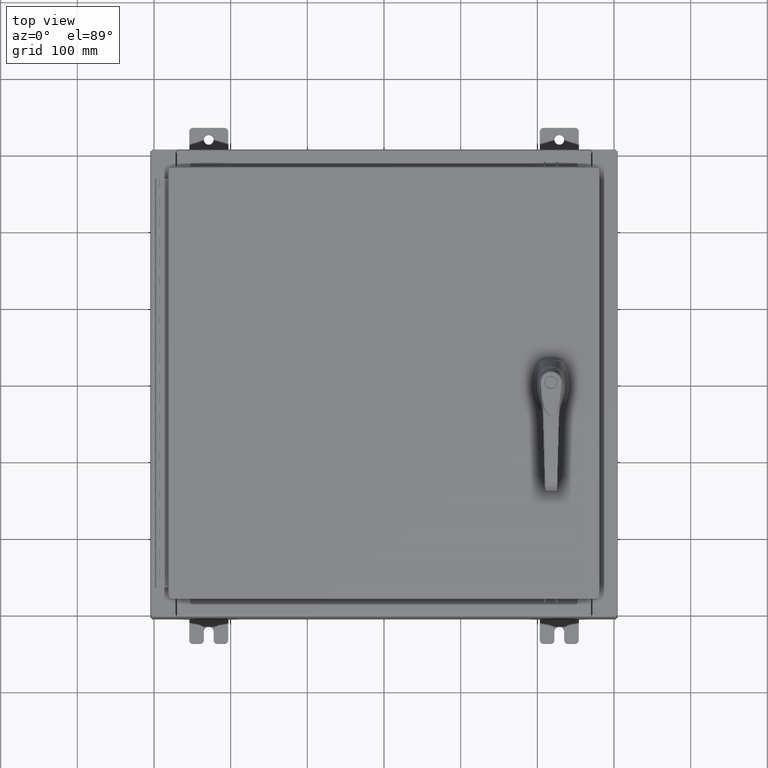
[diagram: clean part render]
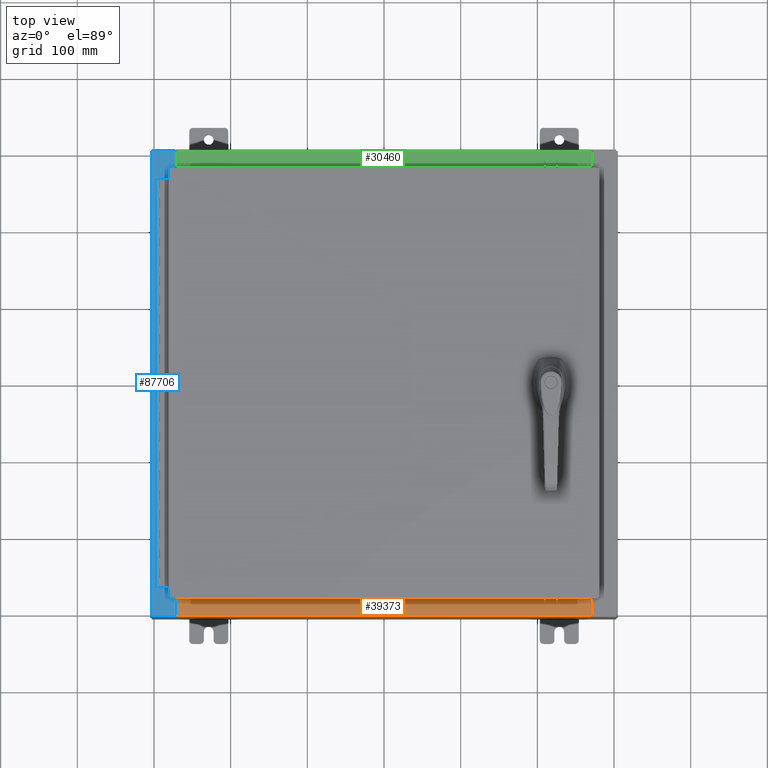
[diagram: same view with three faces highlighted in distinct colors, each labeled with its STEP entity id]
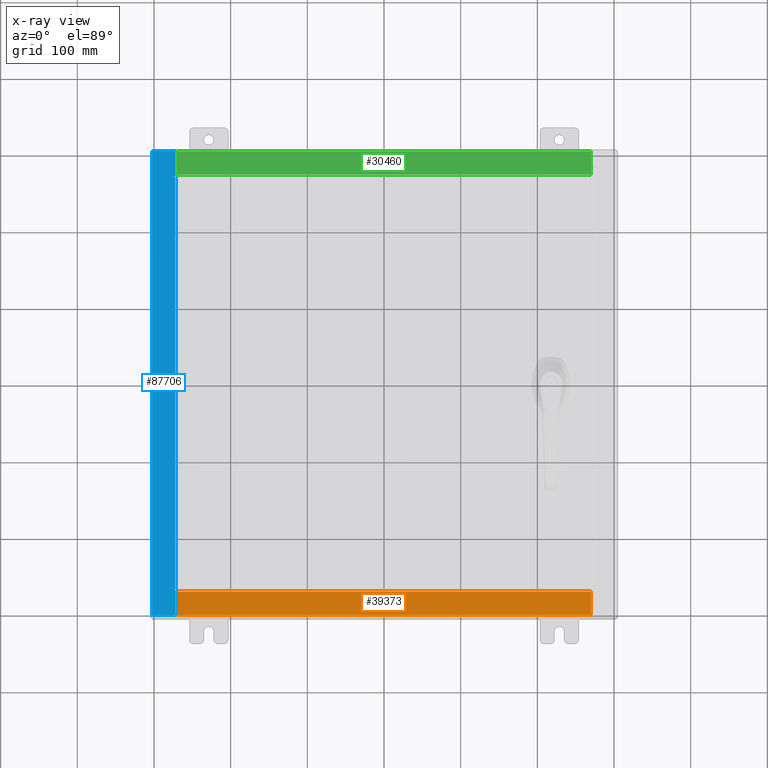
[diagram: x-ray of the same camera — body ghosted, the three highlighted faces saturated]
A machine part, top view with three faces highlighted in distinct colors.
The next image is the same camera in x-ray (body ghosted, the three faces saturated) — at least one of them is partly hidden behind the body in this view.
Their STEP definitions:

[orange] entity #39373 — the highlighted planar face has unit normal (-0, -0, 1).
#1429 = EDGE_CURVE ( 'NONE', #53673, #110634, #16888, .T. ) ;
#1883 = CARTESIAN_POINT ( 'NONE',  ( 0.0000000000000000000, 1.425992975200418500E-014, 4.000000000000000000 ) ) ;
#3041 = CARTESIAN_POINT ( 'NONE',  ( 10.63720000000000400, -1.287299999999999900, 4.000000000000003600 ) ) ;
#3532 = DIRECTION ( 'NONE',  ( -0.0000000000000000000, -1.000000000000000000, 3.566381192773190000E-015 ) ) ;
#3875 = EDGE_CURVE ( 'NONE', #22768, #53673, #96547, .T. ) ;
#12173 = EDGE_CURVE ( 'NONE', #54804, #110634, #84889, .T. ) ;
#15440 = DIRECTION ( 'NONE',  ( -0.0000000000000000000, 1.000000000000000000, -3.566381192773190000E-015 ) ) ;
#16888 = LINE ( 'NONE', #32436, #103581 ) ;
#19287 = DIRECTION ( 'NONE',  ( 0.0000000000000000000, -1.000000000000000000, 3.566381192773190000E-015 ) ) ;
#22768 = VERTEX_POINT ( 'NONE', #26727 ) ;
#24507 = CARTESIAN_POINT ( 'NONE',  ( 10.63720000000000400, -0.08769999999999965300, 4.000000000000000000 ) ) ;
#26727 = CARTESIAN_POINT ( 'NONE',  ( 10.63720000000000200, -1.287299999999999900, 4.000000000000004400 ) ) ;
#30814 = FACE_OUTER_BOUND ( 'NONE', #86285, .T. ) ;
#32436 = CARTESIAN_POINT ( 'NONE',  ( -10.63720000000000200, -0.07469999999999973900, 4.000000000000000000 ) ) ;
#32552 = VECTOR ( 'NONE', #3532, 39.37007874015748100 ) ;
#33054 = ORIENTED_EDGE ( 'NONE', *, *, #3875, .F. ) ;
#39373 = ADVANCED_FACE ( 'NONE', ( #30814 ), #105623, .T. ) ;
#41640 = ORIENTED_EDGE ( 'NONE', *, *, #108211, .F. ) ;
#48011 = AXIS2_PLACEMENT_3D ( 'NONE', #1883, #71136, #19287 ) ;
#53673 = VERTEX_POINT ( 'NONE', #91817 ) ;
#54804 = VERTEX_POINT ( 'NONE', #24507 ) ;
#59952 = ORIENTED_EDGE ( 'NONE', *, *, #1429, .F. ) ;
#65030 = ORIENTED_EDGE ( 'NONE', *, *, #12173, .T. ) ;
#71136 = DIRECTION ( 'NONE',  ( 0.0000000000000000000, 3.566381192773190000E-015, 1.000000000000000000 ) ) ;
#71613 = CARTESIAN_POINT ( 'NONE',  ( -2.252313287748606700E-018, -0.08770000000000000000, 4.000000000000000900 ) ) ;
#78658 = LINE ( 'NONE', #107289, #32552 ) ;
#78918 = VECTOR ( 'NONE', #81026, 39.37007874015748100 ) ;
#81026 = DIRECTION ( 'NONE',  ( -1.000000000000000000, 0.0000000000000000000, 0.0000000000000000000 ) ) ;
#84889 = LINE ( 'NONE', #71613, #105255 ) ;
#86285 = EDGE_LOOP ( 'NONE', ( #59952, #33054, #41640, #65030 ) ) ;
#91817 = CARTESIAN_POINT ( 'NONE',  ( -10.63720000000000200, -1.287299999999999200, 4.000000000000004400 ) ) ;
#96547 = LINE ( 'NONE', #3041, #78918 ) ;
#103581 = VECTOR ( 'NONE', #15440, 39.37007874015748100 ) ;
#105255 = VECTOR ( 'NONE', #106463, 39.37007874015748100 ) ;
#105623 = PLANE ( 'NONE',  #48011 ) ;
#106463 = DIRECTION ( 'NONE',  ( -1.000000000000000000, 2.568202152506545800E-017, -9.159187855938968600E-032 ) ) ;
#106597 = CARTESIAN_POINT ( 'NONE',  ( -10.63720000000000200, -0.08770000000000000000, 4.000000000000000000 ) ) ;
#107289 = CARTESIAN_POINT ( 'NONE',  ( 10.63720000000000200, -1.300299999999999800, 4.000000000000004400 ) ) ;
#108211 = EDGE_CURVE ( 'NONE', #54804, #22768, #78658, .T. ) ;
#110634 = VERTEX_POINT ( 'NONE', #106597 ) ;

[blue] entity #87706 — the highlighted planar face has unit normal (0, 0, -1).
#1694 = CARTESIAN_POINT ( 'NONE',  ( -11.91230000000003200, 11.92529999999999800, 7.925300000000000000 ) ) ;
#1699 = LINE ( 'NONE', #44984, #22016 ) ;
#2779 = DIRECTION ( 'NONE',  ( -7.132762385546384700E-015, -0.0000000000000000000, 1.000000000000000000 ) ) ;
#2958 = DIRECTION ( 'NONE',  ( 1.000000000000000000, 0.0000000000000000000, 2.170286390199955400E-014 ) ) ;
#5369 = CIRCLE ( 'NONE', #111461, 0.01867499999999949400 ) ;
#5737 = ORIENTED_EDGE ( 'NONE', *, *, #40943, .F. ) ;
#8793 = FACE_OUTER_BOUND ( 'NONE', #81550, .T. ) ;
#8949 = CARTESIAN_POINT ( 'NONE',  ( -10.71270000000003500, 10.59374999999999300, 7.925300000000006200 ) ) ;
#9499 = DIRECTION ( 'NONE',  ( -7.132762385546384700E-015, -0.0000000000000000000, 1.000000000000000000 ) ) ;
#13064 = LINE ( 'NONE', #78762, #76711 ) ;
#13615 = ORIENTED_EDGE ( 'NONE', *, *, #27939, .T. ) ;
#14885 = ORIENTED_EDGE ( 'NONE', *, *, #39295, .F. ) ;
#15615 = LINE ( 'NONE', #73449, #102300 ) ;
#15679 = VECTOR ( 'NONE', #83927, 39.37007874015748100 ) ;
#18204 = DIRECTION ( 'NONE',  ( 1.000000000000000000, 0.0000000000000000000, 0.0000000000000000000 ) ) ;
#19674 = CARTESIAN_POINT ( 'NONE',  ( -10.71270000000003500, 10.59374999999999800, 7.925300000000006200 ) ) ;
#21805 = VERTEX_POINT ( 'NONE', #75858 ) ;
#22016 = VECTOR ( 'NONE', #105626, 39.37007874015748100 ) ;
#23555 = VERTEX_POINT ( 'NONE', #85582 ) ;
#23810 = EDGE_CURVE ( 'NONE', #21805, #72520, #1699, .T. ) ;
#24667 = EDGE_CURVE ( 'NONE', #102381, #44939, #50299, .T. ) ;
#24823 = VECTOR ( 'NONE', #69502, 39.37007874015748100 ) ;
#27102 = EDGE_CURVE ( 'NONE', #21805, #44939, #101543, .T. ) ;
#27228 = VERTEX_POINT ( 'NONE', #87561 ) ;
#27887 = LINE ( 'NONE', #37359, #68591 ) ;
#27939 = EDGE_CURVE ( 'NONE', #34174, #102381, #101444, .T. ) ;
#29276 = VERTEX_POINT ( 'NONE', #56188 ) ;
#29724 = EDGE_CURVE ( 'NONE', #34174, #27228, #95853, .T. ) ;
#32063 = CARTESIAN_POINT ( 'NONE',  ( -10.71270000000003500, -10.59374999999998900, 7.925300000000006200 ) ) ;
#33600 = CARTESIAN_POINT ( 'NONE',  ( -10.69970000000003200, 10.63109999999999600, 7.925300000000008900 ) ) ;
#33732 = ORIENTED_EDGE ( 'NONE', *, *, #41099, .F. ) ;
#34174 = VERTEX_POINT ( 'NONE', #33600 ) ;
#34456 = VERTEX_POINT ( 'NONE', #101317 ) ;
#34540 = DIRECTION ( 'NONE',  ( -0.0000000000000000000, 1.000000000000000000, -0.0000000000000000000 ) ) ;
#35967 = CARTESIAN_POINT ( 'NONE',  ( -10.69970000000003200, -11.92530000000000000, 7.925300000000008900 ) ) ;
#37359 = CARTESIAN_POINT ( 'NONE',  ( -10.75005000000003400, -10.63109999999998800, 7.925300000000006200 ) ) ;
#38553 = DIRECTION ( 'NONE',  ( 0.0000000000000000000, 1.000000000000000000, 0.0000000000000000000 ) ) ;
#39295 = EDGE_CURVE ( 'NONE', #29276, #68786, #90499, .T. ) ;
#40943 = EDGE_CURVE ( 'NONE', #23555, #59067, #13064, .T. ) ;
#41099 = EDGE_CURVE ( 'NONE', #68786, #34456, #27887, .T. ) ;
#41751 = EDGE_CURVE ( 'NONE', #104526, #29276, #64429, .T. ) ;
#41797 = ORIENTED_EDGE ( 'NONE', *, *, #24667, .T. ) ;
#44867 = VECTOR ( 'NONE', #61431, 39.37007874015748100 ) ;
#44939 = VERTEX_POINT ( 'NONE', #1694 ) ;
#44973 = EDGE_CURVE ( 'NONE', #27228, #23555, #5369, .T. ) ;
#44984 = CARTESIAN_POINT ( 'NONE',  ( -5.679009539018295300E-014, -11.92530000000000000, 7.925300000000085300 ) ) ;
#46302 = ORIENTED_EDGE ( 'NONE', *, *, #44973, .F. ) ;
#47766 = CARTESIAN_POINT ( 'NONE',  ( -5.679009539018295300E-014, 0.0000000000000000000, 7.925300000000085300 ) ) ;
#49684 = VECTOR ( 'NONE', #90154, 39.37007874015748100 ) ;
#50236 = EDGE_CURVE ( 'NONE', #72520, #34456, #15615, .T. ) ;
#50299 = LINE ( 'NONE', #95953, #44867 ) ;
#54637 = CARTESIAN_POINT ( 'NONE',  ( -10.75005000000003400, 10.61242499999999800, 7.925300000000006200 ) ) ;
#55349 = VECTOR ( 'NONE', #58565, 39.37007874015748100 ) ;
#56188 = CARTESIAN_POINT ( 'NONE',  ( -10.75005000000003400, -10.59374999999998900, 7.925300000000008900 ) ) ;
#56868 = DIRECTION ( 'NONE',  ( -1.000000000000000000, 0.0000000000000000000, -7.132762385546384700E-015 ) ) ;
#58041 = ORIENTED_EDGE ( 'NONE', *, *, #63391, .F. ) ;
#58374 = CARTESIAN_POINT ( 'NONE',  ( -10.71270000000003500, -10.59374999999998900, 7.925300000000006200 ) ) ;
#58565 = DIRECTION ( 'NONE',  ( 0.0000000000000000000, 1.000000000000000000, 0.0000000000000000000 ) ) ;
#59067 = VERTEX_POINT ( 'NONE', #19674 ) ;
#60060 = ORIENTED_EDGE ( 'NONE', *, *, #29724, .F. ) ;
#61331 = CARTESIAN_POINT ( 'NONE',  ( -10.75005000000003400, -10.61242499999998900, 7.925300000000006200 ) ) ;
#61431 = DIRECTION ( 'NONE',  ( -1.000000000000000000, 0.0000000000000000000, -7.132762385546384700E-015 ) ) ;
#62278 = CARTESIAN_POINT ( 'NONE',  ( -10.75005000000003400, -10.63109999999998800, 7.925300000000008900 ) ) ;
#63351 = DIRECTION ( 'NONE',  ( 1.000000000000000000, 0.0000000000000000000, 0.0000000000000000000 ) ) ;
#63391 = EDGE_CURVE ( 'NONE', #59067, #104526, #91214, .T. ) ;
#64429 = LINE ( 'NONE', #32063, #15679 ) ;
#68591 = VECTOR ( 'NONE', #2958, 39.37007874015748100 ) ;
#68786 = VERTEX_POINT ( 'NONE', #62278 ) ;
#69502 = DIRECTION ( 'NONE',  ( -0.0000000000000000000, -1.000000000000000000, -0.0000000000000000000 ) ) ;
#70052 = DIRECTION ( 'NONE',  ( 1.000000000000000000, 0.0000000000000000000, 0.0000000000000000000 ) ) ;
#72520 = VERTEX_POINT ( 'NONE', #35967 ) ;
#73449 = CARTESIAN_POINT ( 'NONE',  ( -10.69970000000003200, 0.0000000000000000000, 7.925300000000008900 ) ) ;
#75608 = CARTESIAN_POINT ( 'NONE',  ( -10.69970000000003200, 0.0000000000000000000, 7.925300000000008900 ) ) ;
#75858 = CARTESIAN_POINT ( 'NONE',  ( -11.91230000000003200, -11.92530000000000000, 7.925300000000000000 ) ) ;
#76711 = VECTOR ( 'NONE', #18204, 39.37007874015748100 ) ;
#78762 = CARTESIAN_POINT ( 'NONE',  ( -10.75005000000003400, 10.59374999999999800, 7.925300000000006200 ) ) ;
#80427 = ORIENTED_EDGE ( 'NONE', *, *, #27102, .F. ) ;
#81550 = EDGE_LOOP ( 'NONE', ( #60060, #13615, #41797, #80427, #108039, #83358, #33732, #14885, #87100, #58041, #5737, #46302 ) ) ;
#83358 = ORIENTED_EDGE ( 'NONE', *, *, #50236, .T. ) ;
#83927 = DIRECTION ( 'NONE',  ( -1.000000000000000000, 0.0000000000000000000, 0.0000000000000000000 ) ) ;
#84374 = AXIS2_PLACEMENT_3D ( 'NONE', #47766, #108806, #56868 ) ;
#85582 = CARTESIAN_POINT ( 'NONE',  ( -10.75005000000003400, 10.59374999999999800, 7.925300000000008900 ) ) ;
#87100 = ORIENTED_EDGE ( 'NONE', *, *, #41751, .F. ) ;
#87561 = CARTESIAN_POINT ( 'NONE',  ( -10.75005000000003400, 10.63109999999999600, 7.925300000000008900 ) ) ;
#87706 = ADVANCED_FACE ( 'NONE', ( #8793 ), #100068, .F. ) ;
#90154 = DIRECTION ( 'NONE',  ( -1.000000000000000000, 0.0000000000000000000, -2.170286390199955400E-014 ) ) ;
#90499 = CIRCLE ( 'NONE', #102473, 0.01867499999999949400 ) ;
#91214 = LINE ( 'NONE', #8949, #24823 ) ;
#95853 = LINE ( 'NONE', #98885, #49684 ) ;
#95953 = CARTESIAN_POINT ( 'NONE',  ( -5.679009539018295300E-014, 11.92529999999999800, 7.925300000000085300 ) ) ;
#98727 = CARTESIAN_POINT ( 'NONE',  ( -10.69970000000003200, 11.92529999999999800, 7.925300000000008900 ) ) ;
#98838 = VECTOR ( 'NONE', #34540, 39.37007874015748100 ) ;
#98885 = CARTESIAN_POINT ( 'NONE',  ( -10.69970000000003200, 10.63109999999999600, 7.925300000000007100 ) ) ;
#100068 = PLANE ( 'NONE',  #84374 ) ;
#101317 = CARTESIAN_POINT ( 'NONE',  ( -10.69970000000003200, -10.63109999999999100, 7.925300000000008900 ) ) ;
#101444 = LINE ( 'NONE', #75608, #55349 ) ;
#101543 = LINE ( 'NONE', #103897, #98838 ) ;
#102300 = VECTOR ( 'NONE', #38553, 39.37007874015748100 ) ;
#102381 = VERTEX_POINT ( 'NONE', #98727 ) ;
#102473 = AXIS2_PLACEMENT_3D ( 'NONE', #61331, #9499, #70052 ) ;
#103897 = CARTESIAN_POINT ( 'NONE',  ( -11.91230000000003200, 11.92529999999999800, 7.925300000000000000 ) ) ;
#104526 = VERTEX_POINT ( 'NONE', #58374 ) ;
#105626 = DIRECTION ( 'NONE',  ( 1.000000000000000000, -0.0000000000000000000, 7.132762385546384700E-015 ) ) ;
#108039 = ORIENTED_EDGE ( 'NONE', *, *, #23810, .T. ) ;
#108806 = DIRECTION ( 'NONE',  ( 7.132762385546384700E-015, 0.0000000000000000000, -1.000000000000000000 ) ) ;
#111461 = AXIS2_PLACEMENT_3D ( 'NONE', #54637, #2779, #63351 ) ;

[green] entity #30460 — the highlighted planar face has unit normal (0, 0, 1).
#4064 = VECTOR ( 'NONE', #89774, 39.37007874015748100 ) ;
#4119 = AXIS2_PLACEMENT_3D ( 'NONE', #40000, #5631, #66198 ) ;
#5631 = DIRECTION ( 'NONE',  ( 0.0000000000000000000, 3.566381192773190000E-015, 1.000000000000000000 ) ) ;
#7085 = ORIENTED_EDGE ( 'NONE', *, *, #86445, .F. ) ;
#8691 = VECTOR ( 'NONE', #38563, 39.37007874015748100 ) ;
#9504 = ORIENTED_EDGE ( 'NONE', *, *, #69728, .T. ) ;
#12587 = VERTEX_POINT ( 'NONE', #32180 ) ;
#12797 = FACE_OUTER_BOUND ( 'NONE', #76328, .T. ) ;
#12901 = CARTESIAN_POINT ( 'NONE',  ( 10.63720000000000400, -1.287299999999999900, 4.000000000000003600 ) ) ;
#14432 = VECTOR ( 'NONE', #23332, 39.37007874015748100 ) ;
#23069 = CARTESIAN_POINT ( 'NONE',  ( -10.63720000000000200, -1.287299999999999200, 4.000000000000004400 ) ) ;
#23332 = DIRECTION ( 'NONE',  ( -0.0000000000000000000, -1.000000000000000000, 3.566381192773190000E-015 ) ) ;
#27094 = LINE ( 'NONE', #106835, #4064 ) ;
#30460 = ADVANCED_FACE ( 'NONE', ( #12797 ), #57470, .T. ) ;
#32141 = CARTESIAN_POINT ( 'NONE',  ( -10.63720000000000200, -0.08770000000000000000, 4.000000000000000000 ) ) ;
#32180 = CARTESIAN_POINT ( 'NONE',  ( 10.63720000000000200, -1.287299999999999900, 4.000000000000004400 ) ) ;
#35933 = ORIENTED_EDGE ( 'NONE', *, *, #77322, .F. ) ;
#38563 = DIRECTION ( 'NONE',  ( -1.000000000000000000, 0.0000000000000000000, 0.0000000000000000000 ) ) ;
#40000 = CARTESIAN_POINT ( 'NONE',  ( 0.0000000000000000000, 1.425992975200418500E-014, 4.000000000000000000 ) ) ;
#40506 = DIRECTION ( 'NONE',  ( -0.0000000000000000000, 1.000000000000000000, -3.566381192773190000E-015 ) ) ;
#45396 = VECTOR ( 'NONE', #40506, 39.37007874015748100 ) ;
#53138 = VERTEX_POINT ( 'NONE', #76381 ) ;
#57470 = PLANE ( 'NONE',  #4119 ) ;
#59263 = VERTEX_POINT ( 'NONE', #32141 ) ;
#63039 = LINE ( 'NONE', #83718, #45396 ) ;
#66198 = DIRECTION ( 'NONE',  ( 0.0000000000000000000, -1.000000000000000000, 3.566381192773190000E-015 ) ) ;
#66506 = CARTESIAN_POINT ( 'NONE',  ( 10.63720000000000200, -1.300299999999999800, 4.000000000000004400 ) ) ;
#69728 = EDGE_CURVE ( 'NONE', #53138, #59263, #27094, .T. ) ;
#74186 = EDGE_CURVE ( 'NONE', #53138, #12587, #106538, .T. ) ;
#76328 = EDGE_LOOP ( 'NONE', ( #7085, #35933, #83371, #9504 ) ) ;
#76381 = CARTESIAN_POINT ( 'NONE',  ( 10.63720000000000400, -0.08769999999999965300, 4.000000000000000000 ) ) ;
#77322 = EDGE_CURVE ( 'NONE', #12587, #92336, #98097, .T. ) ;
#83371 = ORIENTED_EDGE ( 'NONE', *, *, #74186, .F. ) ;
#83718 = CARTESIAN_POINT ( 'NONE',  ( -10.63720000000000200, -0.07469999999999973900, 4.000000000000000000 ) ) ;
#86445 = EDGE_CURVE ( 'NONE', #92336, #59263, #63039, .T. ) ;
#89774 = DIRECTION ( 'NONE',  ( -1.000000000000000000, 2.568202152506545800E-017, -9.159187855938968600E-032 ) ) ;
#92336 = VERTEX_POINT ( 'NONE', #23069 ) ;
#98097 = LINE ( 'NONE', #12901, #8691 ) ;
#106538 = LINE ( 'NONE', #66506, #14432 ) ;
#106835 = CARTESIAN_POINT ( 'NONE',  ( -2.252313287748606700E-018, -0.08770000000000000000, 4.000000000000000900 ) ) ;